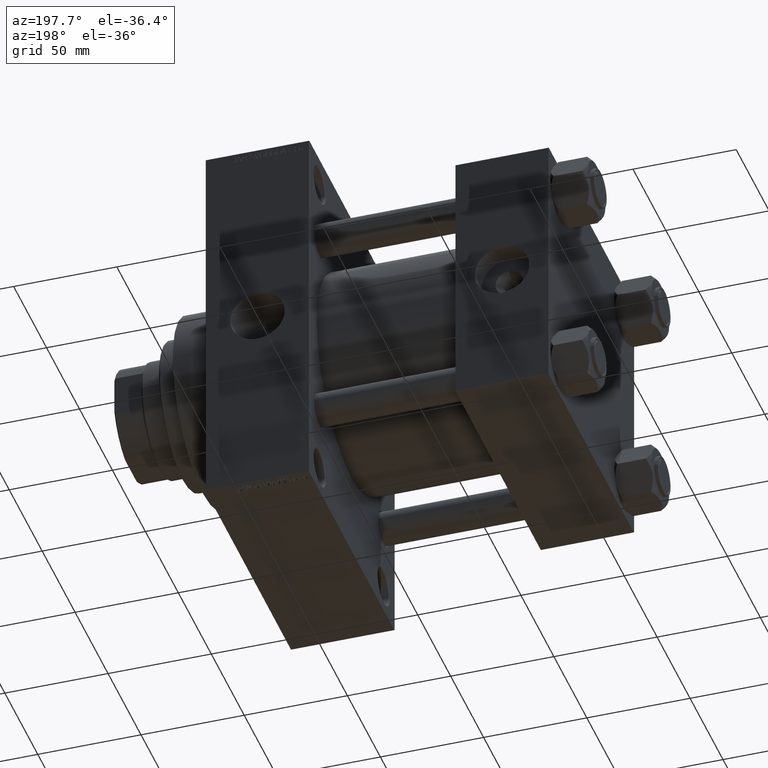
[diagram: clean part render]
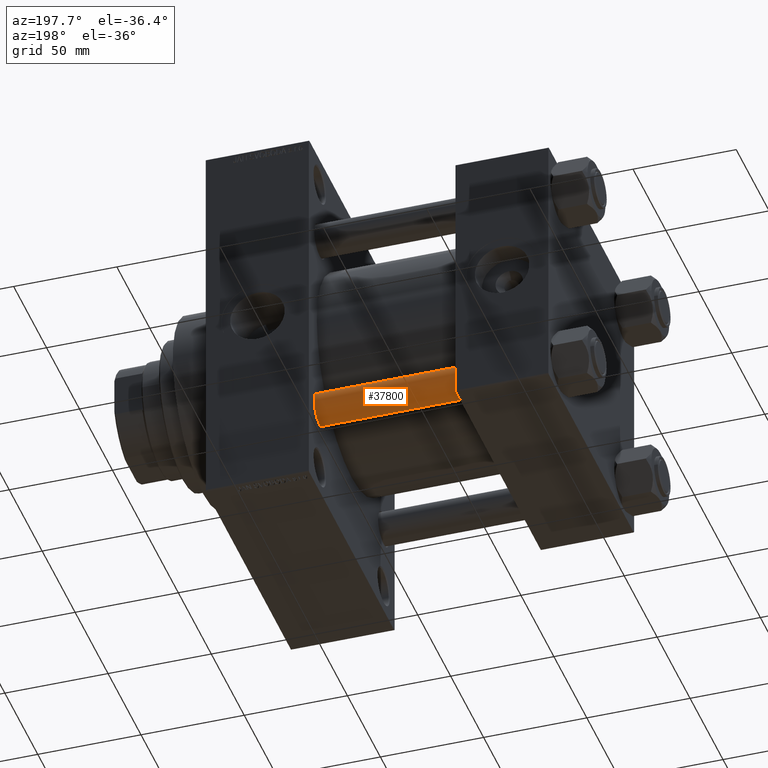
[diagram: same view with one face highlighted and labeled with its STEP entity id]
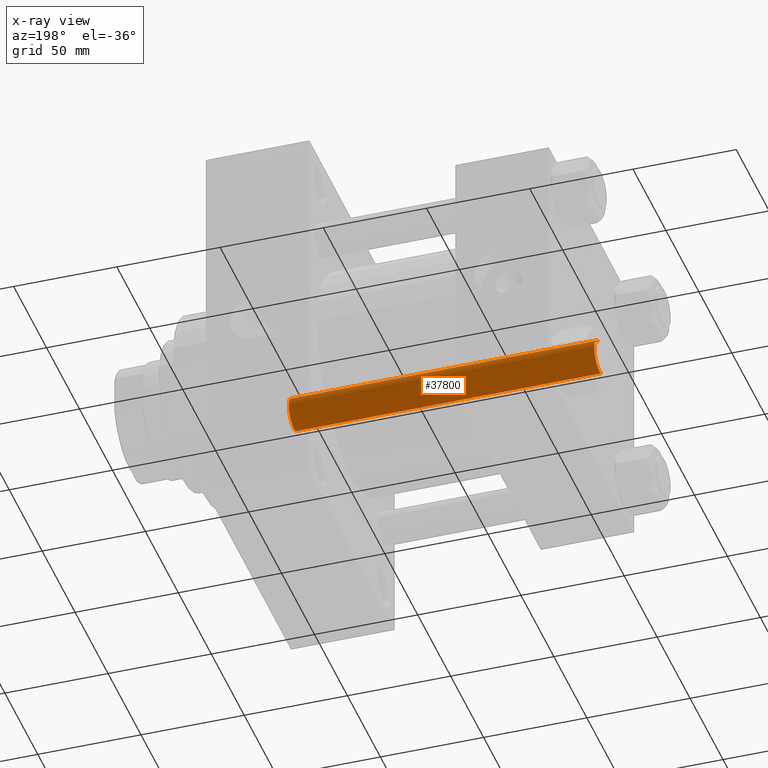
[diagram: x-ray of the same camera — body ghosted, the highlighted face saturated]
A machine part, auxiliary view. The second image highlights one B-rep face of the part: STEP entity #37800.
The next image is the same camera in x-ray: the body ghosted, the highlighted face saturated — about 0% of this face is hidden behind the body in this view.
In plain terms, the highlighted cylindrical surface (edge-blend (fillet) strip) has radius 8 mm, axis along (1, -0, 0).
Its self-contained STEP definition (entity closure, byte-faithful):
#525 = ORIENTED_EDGE ( 'NONE', *, *, #11193, .T. ) ;
#4042 = DIRECTION ( 'NONE',  ( 0.000000000000000000, 0.000000000000000000, -1.000000000000000000 ) ) ;
#4557 = AXIS2_PLACEMENT_3D ( 'NONE', #30225, #45865, #14380 ) ;
#4803 = EDGE_CURVE ( 'NONE', #32724, #48435, #28989, .T. ) ;
#6395 = ORIENTED_EDGE ( 'NONE', *, *, #47097, .F. ) ;
#6637 = DIRECTION ( 'NONE',  ( -0.000000000000000000, -0.000000000000000000, -1.000000000000000000 ) ) ;
#7002 = CIRCLE ( 'NONE', #4557, 8.000000000000000000 ) ;
#7659 = LINE ( 'NONE', #45472, #46926 ) ;
#8591 = CARTESIAN_POINT ( 'NONE',  ( 0.000000000000000000, 0.000000000000000000, 148.5000000000000000 ) ) ;
#8900 = CARTESIAN_POINT ( 'NONE',  ( 8.000000000000000000, 9.797174393178825657E-16, 148.5000000000000000 ) ) ;
#9918 = DIRECTION ( 'NONE',  ( -1.000000000000000000, 0.000000000000000000, 0.000000000000000000 ) ) ;
#11182 = ORIENTED_EDGE ( 'NONE', *, *, #23116, .T. ) ;
#11193 = EDGE_CURVE ( 'NONE', #48435, #41976, #7659, .T. ) ;
#13710 = FACE_OUTER_BOUND ( 'NONE', #24591, .T. ) ;
#14209 = CARTESIAN_POINT ( 'NONE',  ( 0.000000000000000000, 0.000000000000000000, 149.0000000000000000 ) ) ;
#14380 = DIRECTION ( 'NONE',  ( 1.000000000000000000, 0.000000000000000000, 0.000000000000000000 ) ) ;
#17288 = CARTESIAN_POINT ( 'NONE',  ( -8.000000000000000000, 0.000000000000000000, 0.5000000000000281997 ) ) ;
#17812 = CARTESIAN_POINT ( 'NONE',  ( -8.000000000000000000, 0.000000000000000000, 148.5000000000000000 ) ) ;
#23116 = EDGE_CURVE ( 'NONE', #41976, #28903, #7002, .T. ) ;
#24591 = EDGE_LOOP ( 'NONE', ( #26610, #525, #11182, #6395 ) ) ;
#26610 = ORIENTED_EDGE ( 'NONE', *, *, #4803, .T. ) ;
#28813 = CYLINDRICAL_SURFACE ( 'NONE', #47294, 8.000000000000000000 ) ;
#28903 = VERTEX_POINT ( 'NONE', #17288 ) ;
#28989 = CIRCLE ( 'NONE', #37839, 8.000000000000000000 ) ;
#30225 = CARTESIAN_POINT ( 'NONE',  ( 0.000000000000000000, 0.000000000000000000, 0.5000000000000281997 ) ) ;
#32724 = VERTEX_POINT ( 'NONE', #17812 ) ;
#37800 = ADVANCED_FACE ( 'NONE', ( #13710 ), #28813, .T. ) ;
#37839 = AXIS2_PLACEMENT_3D ( 'NONE', #8591, #4042, #46899 ) ;
#41976 = VERTEX_POINT ( 'NONE', #48262 ) ;
#45080 = VECTOR ( 'NONE', #45685, 1000.000000000000000 ) ;
#45183 = LINE ( 'NONE', #45931, #45080 ) ;
#45472 = CARTESIAN_POINT ( 'NONE',  ( 8.000000000000000000, 9.797174393178825657E-16, 149.0000000000000000 ) ) ;
#45685 = DIRECTION ( 'NONE',  ( -0.000000000000000000, -0.000000000000000000, -1.000000000000000000 ) ) ;
#45721 = DIRECTION ( 'NONE',  ( -0.000000000000000000, -0.000000000000000000, -1.000000000000000000 ) ) ;
#45865 = DIRECTION ( 'NONE',  ( -0.000000000000000000, -0.000000000000000000, 1.000000000000000000 ) ) ;
#45931 = CARTESIAN_POINT ( 'NONE',  ( -8.000000000000000000, 0.000000000000000000, 149.0000000000000000 ) ) ;
#46899 = DIRECTION ( 'NONE',  ( 1.000000000000000000, 0.000000000000000000, 0.000000000000000000 ) ) ;
#46926 = VECTOR ( 'NONE', #45721, 1000.000000000000000 ) ;
#47097 = EDGE_CURVE ( 'NONE', #32724, #28903, #45183, .T. ) ;
#47294 = AXIS2_PLACEMENT_3D ( 'NONE', #14209, #6637, #9918 ) ;
#48262 = CARTESIAN_POINT ( 'NONE',  ( 8.000000000000000000, 9.797174393178825657E-16, 0.5000000000000281997 ) ) ;
#48435 = VERTEX_POINT ( 'NONE', #8900 ) ;